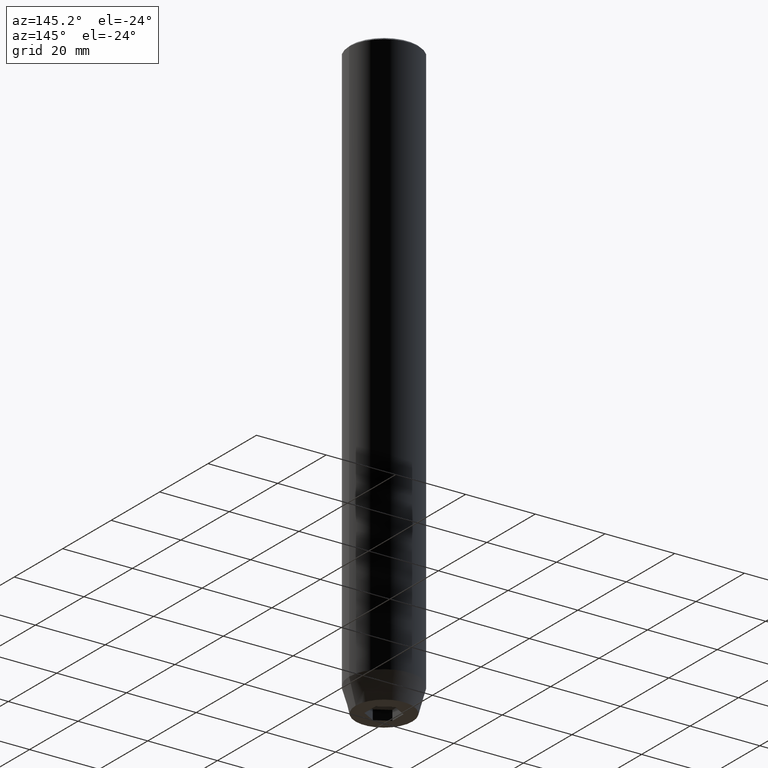
[diagram: clean part render]
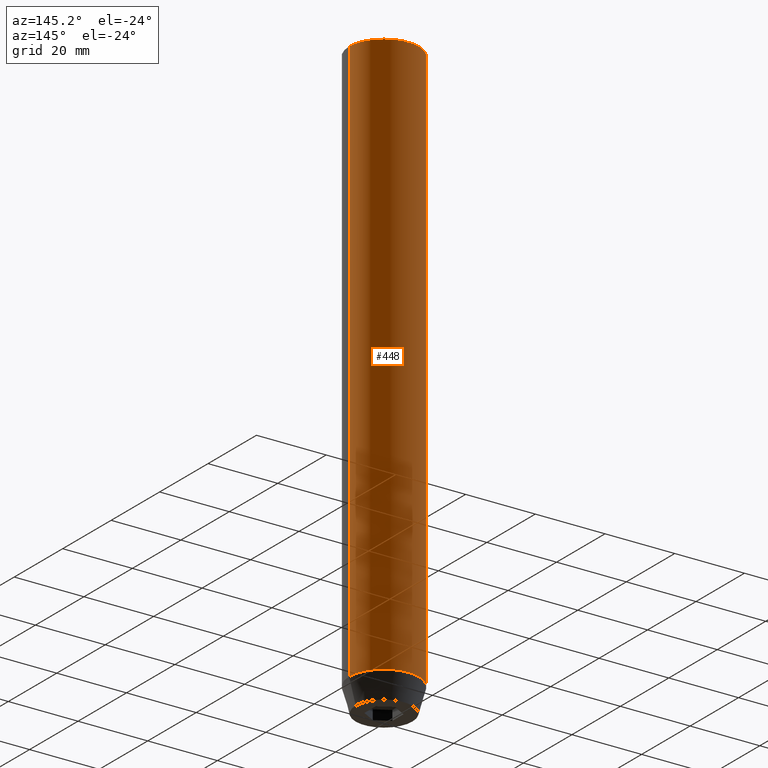
[diagram: same view with one face highlighted and labeled with its STEP entity id]
A machine part, auxiliary view. The second image highlights one B-rep face of the part: STEP entity #448.
In plain terms, the highlighted cylindrical surface (partial cylindrical patch) has radius 10 mm, axis along (-0, -0, 1).
Its self-contained STEP definition (entity closure, byte-faithful):
#26 = CIRCLE ( 'NONE', #131, 10.00000000000000000 ) ;
#62 = DIRECTION ( 'NONE',  ( 0.000000000000000000, 0.000000000000000000, -1.000000000000000000 ) ) ;
#72 = CARTESIAN_POINT ( 'NONE',  ( 0.000000000000000000, 0.000000000000000000, 0.000000000000000000 ) ) ;
#88 = LINE ( 'NONE', #504, #170 ) ;
#110 = EDGE_LOOP ( 'NONE', ( #247, #424, #568, #181 ) ) ;
#125 = CYLINDRICAL_SURFACE ( 'NONE', #570, 10.00000000000000000 ) ;
#131 = AXIS2_PLACEMENT_3D ( 'NONE', #520, #423, #386 ) ;
#139 = CARTESIAN_POINT ( 'NONE',  ( 10.00000000000000000, 0.000000000000000000, -0.4999999999999987232 ) ) ;
#150 = LINE ( 'NONE', #476, #194 ) ;
#170 = VECTOR ( 'NONE', #359, 1000.000000000000000 ) ;
#178 = EDGE_CURVE ( 'NONE', #481, #275, #88, .T. ) ;
#181 = ORIENTED_EDGE ( 'NONE', *, *, #378, .F. ) ;
#194 = VECTOR ( 'NONE', #211, 1000.000000000000000 ) ;
#211 = DIRECTION ( 'NONE',  ( -0.000000000000000000, -0.000000000000000000, 1.000000000000000000 ) ) ;
#247 = ORIENTED_EDGE ( 'NONE', *, *, #400, .T. ) ;
#248 = VERTEX_POINT ( 'NONE', #139 ) ;
#255 = VERTEX_POINT ( 'NONE', #417 ) ;
#275 = VERTEX_POINT ( 'NONE', #283 ) ;
#283 = CARTESIAN_POINT ( 'NONE',  ( -10.00000000000000000, 1.224646799147353256E-15, -0.4999999999999987232 ) ) ;
#285 = EDGE_CURVE ( 'NONE', #275, #248, #303, .T. ) ;
#302 = DIRECTION ( 'NONE',  ( -0.000000000000000000, -0.000000000000000000, 1.000000000000000000 ) ) ;
#303 = CIRCLE ( 'NONE', #428, 10.00000000000000000 ) ;
#336 = DIRECTION ( 'NONE',  ( 1.000000000000000000, 0.000000000000000000, 0.000000000000000000 ) ) ;
#348 = CARTESIAN_POINT ( 'NONE',  ( -10.00000000000000000, 1.224646799147353256E-15, -162.9999999999999716 ) ) ;
#359 = DIRECTION ( 'NONE',  ( -0.000000000000000000, -0.000000000000000000, 1.000000000000000000 ) ) ;
#378 = EDGE_CURVE ( 'NONE', #255, #248, #150, .T. ) ;
#386 = DIRECTION ( 'NONE',  ( 1.000000000000000000, 0.000000000000000000, 0.000000000000000000 ) ) ;
#392 = DIRECTION ( 'NONE',  ( 1.000000000000000000, 0.000000000000000000, 0.000000000000000000 ) ) ;
#400 = EDGE_CURVE ( 'NONE', #255, #481, #26, .T. ) ;
#417 = CARTESIAN_POINT ( 'NONE',  ( 10.00000000000000000, 0.000000000000000000, -162.9999999999999716 ) ) ;
#423 = DIRECTION ( 'NONE',  ( -0.000000000000000000, -0.000000000000000000, 1.000000000000000000 ) ) ;
#424 = ORIENTED_EDGE ( 'NONE', *, *, #178, .T. ) ;
#428 = AXIS2_PLACEMENT_3D ( 'NONE', #558, #62, #336 ) ;
#448 = ADVANCED_FACE ( 'NONE', ( #524 ), #125, .T. ) ;
#476 = CARTESIAN_POINT ( 'NONE',  ( 10.00000000000000000, 0.000000000000000000, 0.000000000000000000 ) ) ;
#481 = VERTEX_POINT ( 'NONE', #348 ) ;
#504 = CARTESIAN_POINT ( 'NONE',  ( -10.00000000000000000, 1.224646799147353256E-15, 0.000000000000000000 ) ) ;
#520 = CARTESIAN_POINT ( 'NONE',  ( 0.000000000000000000, 0.000000000000000000, -162.9999999999999716 ) ) ;
#524 = FACE_OUTER_BOUND ( 'NONE', #110, .T. ) ;
#558 = CARTESIAN_POINT ( 'NONE',  ( 0.000000000000000000, 0.000000000000000000, -0.4999999999999987232 ) ) ;
#568 = ORIENTED_EDGE ( 'NONE', *, *, #285, .T. ) ;
#570 = AXIS2_PLACEMENT_3D ( 'NONE', #72, #302, #392 ) ;